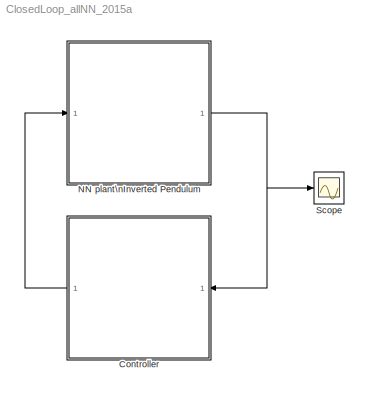
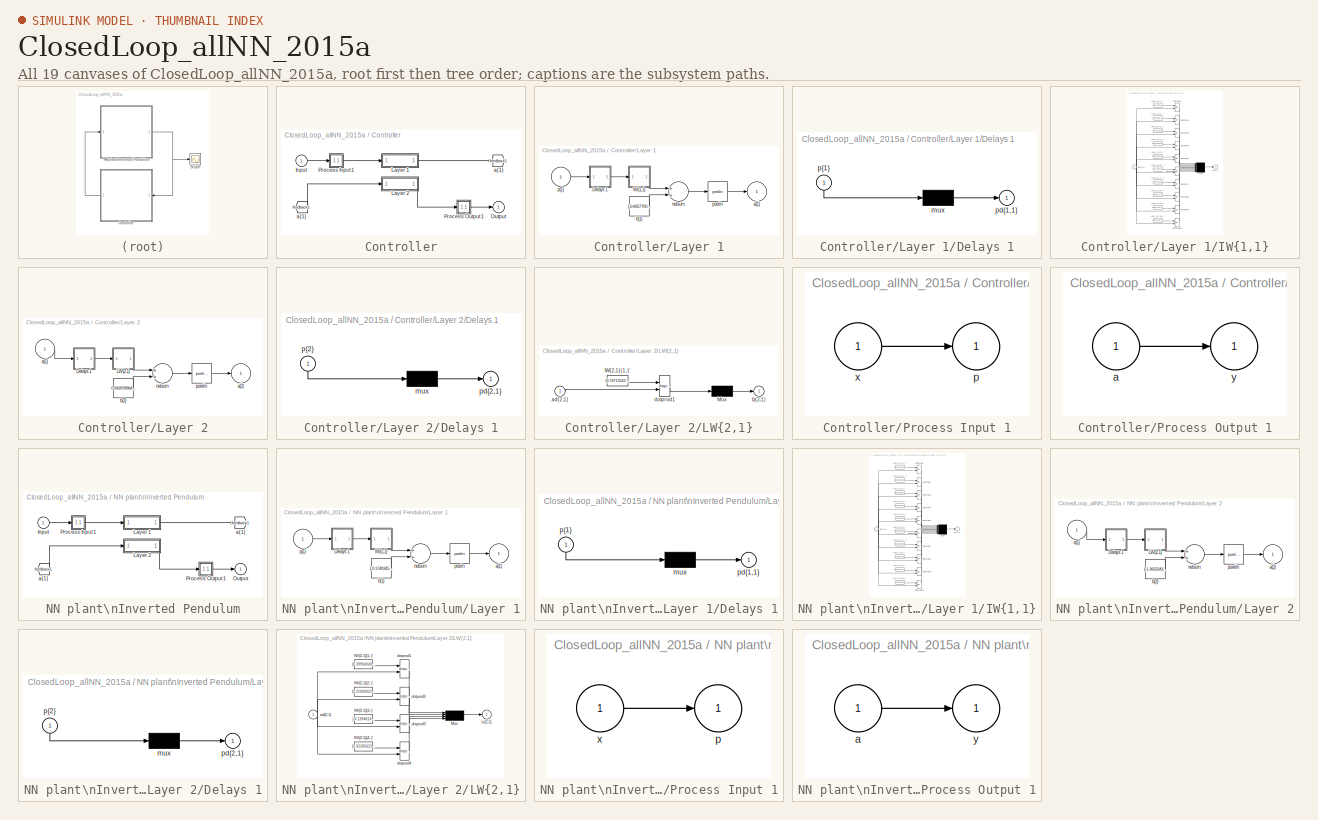
[diagram: thumbnail index - all 19 canvases of the model, root first then tree order]
MODEL ClosedLoop_allNN_2015a
KIND model
BLOCK [SubSystem] Controller
  Ports = [1, 1]
  RequestExecContextInheritance = off
  SID = 70
BLOCK [From] Controller/ a{1} 
  GotoTag = feedback1
  SID = 72
BLOCK [Inport] Controller/Input
  IconDisplay = Port number
  PortDimensions = 4
  SID = 71
BLOCK [SubSystem] Controller/Layer 1
  Ports = [1, 1]
  RequestExecContextInheritance = off
  SID = 73
BLOCK [SubSystem] Controller/Layer 1/Delays 1
  Ports = [1, 1]
  RequestExecContextInheritance = off
  SID = 75
BLOCK [Mux] Controller/Layer 1/Delays 1/mux
  Inputs = 1
  Ports = [1, 1]
  SID = 77
BLOCK [Outport] Controller/Layer 1/Delays 1/pd{1,1}
  IconDisplay = Port number
  SID = 78
BLOCK [Inport] Controller/Layer 1/Delays 1/p{1}
  IconDisplay = Port number
  PortDimensions = 4
  SID = 76
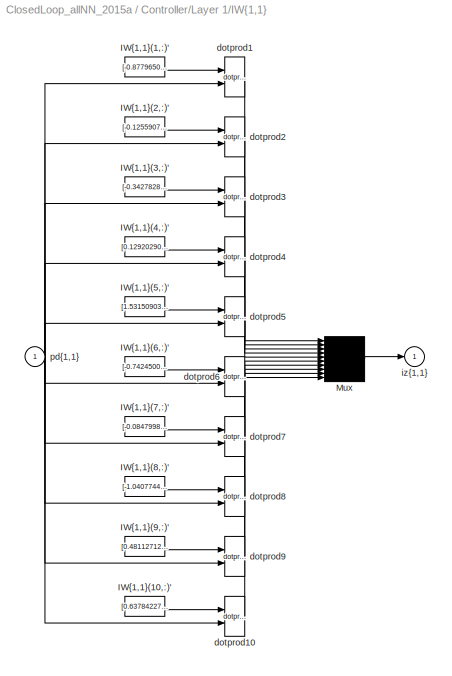
BLOCK [SubSystem] Controller/Layer 1/IW{1,1}
  Ports = [1, 1]
  RequestExecContextInheritance = off
  SID = 79
BLOCK [Constant] Controller/Layer 1/IW{1,1}/IW{1,1}(1,:)'
  SID = 81
  Value = [-0.87796503564738704;0.49901100618950317;0.71454036933225906;0.60627043227243305]
BLOCK [Constant] Controller/Layer 1/IW{1,1}/IW{1,1}(10,:)'
  SID = 82
  Value = [0.63784227733975685;-0.5302537729748027;-1.09627429383206;-0.5567973678491891]
BLOCK [Constant] Controller/Layer 1/IW{1,1}/IW{1,1}(2,:)'
  SID = 83
  Value = [-0.12559077276017769;-0.71710082085226234;0.25209344354354601;0.061115705218528202]
BLOCK [Constant] Controller/Layer 1/IW{1,1}/IW{1,1}(3,:)'
  SID = 84
  Value = [-0.3427828502492371;-0.067392433108730207;-0.69651510406602613;-1.0038188990663375]
BLOCK [Constant] Controller/Layer 1/IW{1,1}/IW{1,1}(4,:)'
  SID = 85
  Value = [0.12920290928565503;-0.69232795911020539;0.1455637388859069;0.41597125707816279]
BLOCK [Constant] Controller/Layer 1/IW{1,1}/IW{1,1}(5,:)'
  SID = 86
  Value = [1.5315090386213615;2.2947881767078333;3.3986928369152865;0.28470496984223509]
BLOCK [Constant] Controller/Layer 1/IW{1,1}/IW{1,1}(6,:)'
  SID = 87
  Value = [-0.74245009986607446;0.61288627274328555;0.80629100358006001;0.3139689927938778]
BLOCK [Constant] Controller/Layer 1/IW{1,1}/IW{1,1}(7,:)'
  SID = 88
  Value = [-0.084799845846560029;-1.3518486101793064;-6.2318932550801325;-1.8592906328174361]
BLOCK [Constant] Controller/Layer 1/IW{1,1}/IW{1,1}(8,:)'
  SID = 89
  Value = [-1.0407744506937988;0.36186145121637042;-0.11679802196322907;-0.39066879861826909]
BLOCK [Constant] Controller/Layer 1/IW{1,1}/IW{1,1}(9,:)'
  SID = 90
  Value = [0.48112712388942463;-0.46653834697750002;-1.8632540329353928;-0.7925217525254632]
BLOCK [Mux] Controller/Layer 1/IW{1,1}/Mux
  Inputs = 10
  Ports = [10, 1]
  SID = 91
BLOCK [Reference] Controller/Layer 1/IW{1,1}/dotprod1  REF=neural/Weight Functions/dotprod
  Ports = [2, 1]
  SID = 92
  SourceBlock = neural/Weight Functions/dotprod
  SourceType = DOTPROD
BLOCK [Reference] Controller/Layer 1/IW{1,1}/dotprod10  REF=neural/Weight Functions/dotprod
  Ports = [2, 1]
  SID = 93
  SourceBlock = neural/Weight Functions/dotprod
  SourceType = DOTPROD
BLOCK [Reference] Controller/Layer 1/IW{1,1}/dotprod2  REF=neural/Weight Functions/dotprod
  Ports = [2, 1]
  SID = 94
  SourceBlock = neural/Weight Functions/dotprod
  SourceType = DOTPROD
BLOCK [Reference] Controller/Layer 1/IW{1,1}/dotprod3  REF=neural/Weight Functions/dotprod
  Ports = [2, 1]
  SID = 95
  SourceBlock = neural/Weight Functions/dotprod
  SourceType = DOTPROD
BLOCK [Reference] Controller/Layer 1/IW{1,1}/dotprod4  REF=neural/Weight Functions/dotprod
  Ports = [2, 1]
  SID = 96
  SourceBlock = neural/Weight Functions/dotprod
  SourceType = DOTPROD
BLOCK [Reference] Controller/Layer 1/IW{1,1}/dotprod5  REF=neural/Weight Functions/dotprod
  Ports = [2, 1]
  SID = 97
  SourceBlock = neural/Weight Functions/dotprod
  SourceType = DOTPROD
BLOCK [Reference] Controller/Layer 1/IW{1,1}/dotprod6  REF=neural/Weight Functions/dotprod
  Ports = [2, 1]
  SID = 98
  SourceBlock = neural/Weight Functions/dotprod
  SourceType = DOTPROD
BLOCK [Reference] Controller/Layer 1/IW{1,1}/dotprod7  REF=neural/Weight Functions/dotprod
  Ports = [2, 1]
  SID = 99
  SourceBlock = neural/Weight Functions/dotprod
  SourceType = DOTPROD
BLOCK [Reference] Controller/Layer 1/IW{1,1}/dotprod8  REF=neural/Weight Functions/dotprod
  Ports = [2, 1]
  SID = 100
  SourceBlock = neural/Weight Functions/dotprod
  SourceType = DOTPROD
BLOCK [Reference] Controller/Layer 1/IW{1,1}/dotprod9  REF=neural/Weight Functions/dotprod
  Ports = [2, 1]
  SID = 101
  SourceBlock = neural/Weight Functions/dotprod
  SourceType = DOTPROD
BLOCK [Outport] Controller/Layer 1/IW{1,1}/iz{1,1}
  IconDisplay = Port number
  SID = 102
BLOCK [Inport] Controller/Layer 1/IW{1,1}/pd{1,1}
  IconDisplay = Port number
  PortDimensions = 4
  SID = 80
BLOCK [Outport] Controller/Layer 1/a{1}
  IconDisplay = Port number
  InitialOutput = [0;0;0;0;0;0;0;0;0;0]
  SID = 106
BLOCK [Constant] Controller/Layer 1/b{1}
  SID = 103
  Value = [-0.695770082956642;-0.59025015285604054;0.85458828482344817;-0.96125374460677404;2.0941624915168702;-0.94182590475219408;1.226247007252744;-0.25044766192840334;0.53655590188584601;0.40367892423748941]
BLOCK [Sum] Controller/Layer 1/netsum
  Inputs = 2
  Ports = [2, 1]
  SID = 104
BLOCK [Reference] Controller/Layer 1/poslin  REF=neural/Transfer Functions/poslin
  Ports = [1, 1]
  SID = 105
  SourceBlock = neural/Transfer Functions/poslin
  SourceType = POSLIN
BLOCK [Inport] Controller/Layer 1/p{1}
  IconDisplay = Port number
  PortDimensions = 4
  SID = 74
BLOCK [SubSystem] Controller/Layer 2
  Ports = [1, 1]
  RequestExecContextInheritance = off
  SID = 107
BLOCK [SubSystem] Controller/Layer 2/Delays 1
  Ports = [1, 1]
  RequestExecContextInheritance = off
  SID = 109
BLOCK [Mux] Controller/Layer 2/Delays 1/mux
  Inputs = 1
  Ports = [1, 1]
  SID = 111
BLOCK [Outport] Controller/Layer 2/Delays 1/pd{2,1}
  IconDisplay = Port number
  SID = 112
BLOCK [Inport] Controller/Layer 2/Delays 1/p{2}
  IconDisplay = Port number
  PortDimensions = 10
  SID = 110
BLOCK [SubSystem] Controller/Layer 2/LW{2,1}
  Ports = [1, 1]
  RequestExecContextInheritance = off
  SID = 113
BLOCK [Constant] Controller/Layer 2/LW{2,1}/IW{2,1}(1,:)'
  SID = 115
  Value = [0.78713542988746454;-0.61752720013607953;-0.77119697366164419;0.87614583201904728;4.2998487518399369;-0.77851724451969462;-6.5049497296170564;3.3055572937914961e-12;-1.8358128336560628;-0.81206546376477995]
BLOCK [Mux] Controller/Layer 2/LW{2,1}/Mux
  Inputs = 1
  Ports = [1, 1]
  SID = 116
BLOCK [Inport] Controller/Layer 2/LW{2,1}/ad{2,1}
  IconDisplay = Port number
  PortDimensions = 10
  SID = 114
BLOCK [Reference] Controller/Layer 2/LW{2,1}/dotprod1  REF=neural/Weight Functions/dotprod
  Ports = [2, 1]
  SID = 117
  SourceBlock = neural/Weight Functions/dotprod
  SourceType = DOTPROD
BLOCK [Outport] Controller/Layer 2/LW{2,1}/lz{2,1}
  IconDisplay = Port number
  SID = 118
BLOCK [Inport] Controller/Layer 2/a{1} 
  IconDisplay = Port number
  PortDimensions = 10
  SID = 108
BLOCK [Outport] Controller/Layer 2/a{2}
  IconDisplay = Port number
  InitialOutput = 0
  SID = 122
BLOCK [Constant] Controller/Layer 2/b{2}
  SID = 119
  Value = 0.94397898477322795
BLOCK [Sum] Controller/Layer 2/netsum
  Inputs = 2
  Ports = [2, 1]
  SID = 120
BLOCK [Reference] Controller/Layer 2/purelin  REF=neural/Transfer Functions/purelin
  Ports = [1, 1]
  SID = 121
  SourceBlock = neural/Transfer Functions/purelin
  SourceType = PURELIN
BLOCK [Outport] Controller/Output
  IconDisplay = Port number
  InitialOutput = 0
  SID = 130
BLOCK [SubSystem] Controller/Process Input 1
  Ports = [1, 1]
  RequestExecContextInheritance = off
  SID = 123
BLOCK [Outport] Controller/Process Input 1/p
  IconDisplay = Port number
  PortDimensions = 4
  SID = 125
BLOCK [Inport] Controller/Process Input 1/x
  IconDisplay = Port number
  PortDimensions = 4
  SID = 124
BLOCK [SubSystem] Controller/Process Output 1
  Ports = [1, 1]
  RequestExecContextInheritance = off
  SID = 126
BLOCK [Inport] Controller/Process Output 1/a
  IconDisplay = Port number
  PortDimensions = 1
  SID = 127
BLOCK [Outport] Controller/Process Output 1/y
  IconDisplay = Port number
  PortDimensions = 1
  SID = 128
BLOCK [Goto] Controller/a{1}
  GotoTag = feedback1
  SID = 129
BLOCK [SubSystem] NN plant\nInverted Pendulum
  Ports = [1, 1]
  RequestExecContextInheritance = off
  SID = 3
BLOCK [From] NN plant\nInverted Pendulum/ a{1} 
  GotoTag = feedback1
  SID = 12
BLOCK [Inport] NN plant\nInverted Pendulum/Input
  IconDisplay = Port number
  PortDimensions = 1
  SID = 4
BLOCK [SubSystem] NN plant\nInverted Pendulum/Layer 1
  Ports = [1, 1]
  RequestExecContextInheritance = off
  SID = 14
BLOCK [SubSystem] NN plant\nInverted Pendulum/Layer 1/Delays 1
  Ports = [1, 1]
  RequestExecContextInheritance = off
  SID = 19
BLOCK [Mux] NN plant\nInverted Pendulum/Layer 1/Delays 1/mux
  Inputs = 1
  Ports = [1, 1]
  SID = 21
BLOCK [Outport] NN plant\nInverted Pendulum/Layer 1/Delays 1/pd{1,1}
  IconDisplay = Port number
  SID = 22
BLOCK [Inport] NN plant\nInverted Pendulum/Layer 1/Delays 1/p{1}
  IconDisplay = Port number
  PortDimensions = 1
  SID = 20
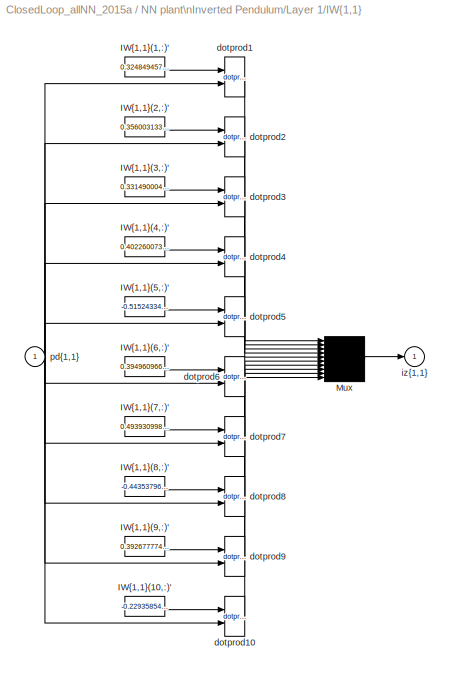
BLOCK [SubSystem] NN plant\nInverted Pendulum/Layer 1/IW{1,1}
  Ports = [1, 1]
  RequestExecContextInheritance = off
  SID = 23
BLOCK [Constant] NN plant\nInverted Pendulum/Layer 1/IW{1,1}/IW{1,1}(1,:)'
  SID = 26
  Value = 0.3248494574321914
BLOCK [Constant] NN plant\nInverted Pendulum/Layer 1/IW{1,1}/IW{1,1}(10,:)'
  SID = 44
  Value = -0.22935854042636031
BLOCK [Constant] NN plant\nInverted Pendulum/Layer 1/IW{1,1}/IW{1,1}(2,:)'
  SID = 28
  Value = 0.3560031333708501
BLOCK [Constant] NN plant\nInverted Pendulum/Layer 1/IW{1,1}/IW{1,1}(3,:)'
  SID = 30
  Value = 0.33149000408451673
BLOCK [Constant] NN plant\nInverted Pendulum/Layer 1/IW{1,1}/IW{1,1}(4,:)'
  SID = 32
  Value = 0.40226007330371516
BLOCK [Constant] NN plant\nInverted Pendulum/Layer 1/IW{1,1}/IW{1,1}(5,:)'
  SID = 34
  Value = -0.51524334846504782
BLOCK [Constant] NN plant\nInverted Pendulum/Layer 1/IW{1,1}/IW{1,1}(6,:)'
  SID = 36
  Value = 0.39496096665943192
BLOCK [Constant] NN plant\nInverted Pendulum/Layer 1/IW{1,1}/IW{1,1}(7,:)'
  SID = 38
  Value = 0.49393099844251459
BLOCK [Constant] NN plant\nInverted Pendulum/Layer 1/IW{1,1}/IW{1,1}(8,:)'
  SID = 40
  Value = -0.44353796095876635
BLOCK [Constant] NN plant\nInverted Pendulum/Layer 1/IW{1,1}/IW{1,1}(9,:)'
  SID = 42
  Value = 0.39267777453827035
BLOCK [Mux] NN plant\nInverted Pendulum/Layer 1/IW{1,1}/Mux
  Inputs = 10
  Ports = [10, 1]
  SID = 45
BLOCK [Reference] NN plant\nInverted Pendulum/Layer 1/IW{1,1}/dotprod1  REF=neural/Weight Functions/dotprod
  Ports = [2, 1]
  SID = 25
  SourceBlock = neural/Weight Functions/dotprod
  SourceType = DOTPROD
BLOCK [Reference] NN plant\nInverted Pendulum/Layer 1/IW{1,1}/dotprod10  REF=neural/Weight Functions/dotprod
  Ports = [2, 1]
  SID = 43
  SourceBlock = neural/Weight Functions/dotprod
  SourceType = DOTPROD
BLOCK [Reference] NN plant\nInverted Pendulum/Layer 1/IW{1,1}/dotprod2  REF=neural/Weight Functions/dotprod
  Ports = [2, 1]
  SID = 27
  SourceBlock = neural/Weight Functions/dotprod
  SourceType = DOTPROD
BLOCK [Reference] NN plant\nInverted Pendulum/Layer 1/IW{1,1}/dotprod3  REF=neural/Weight Functions/dotprod
  Ports = [2, 1]
  SID = 29
  SourceBlock = neural/Weight Functions/dotprod
  SourceType = DOTPROD
BLOCK [Reference] NN plant\nInverted Pendulum/Layer 1/IW{1,1}/dotprod4  REF=neural/Weight Functions/dotprod
  Ports = [2, 1]
  SID = 31
  SourceBlock = neural/Weight Functions/dotprod
  SourceType = DOTPROD
BLOCK [Reference] NN plant\nInverted Pendulum/Layer 1/IW{1,1}/dotprod5  REF=neural/Weight Functions/dotprod
  Ports = [2, 1]
  SID = 33
  SourceBlock = neural/Weight Functions/dotprod
  SourceType = DOTPROD
BLOCK [Reference] NN plant\nInverted Pendulum/Layer 1/IW{1,1}/dotprod6  REF=neural/Weight Functions/dotprod
  Ports = [2, 1]
  SID = 35
  SourceBlock = neural/Weight Functions/dotprod
  SourceType = DOTPROD
BLOCK [Reference] NN plant\nInverted Pendulum/Layer 1/IW{1,1}/dotprod7  REF=neural/Weight Functions/dotprod
  Ports = [2, 1]
  SID = 37
  SourceBlock = neural/Weight Functions/dotprod
  SourceType = DOTPROD
BLOCK [Reference] NN plant\nInverted Pendulum/Layer 1/IW{1,1}/dotprod8  REF=neural/Weight Functions/dotprod
  Ports = [2, 1]
  SID = 39
  SourceBlock = neural/Weight Functions/dotprod
  SourceType = DOTPROD
BLOCK [Reference] NN plant\nInverted Pendulum/Layer 1/IW{1,1}/dotprod9  REF=neural/Weight Functions/dotprod
  Ports = [2, 1]
  SID = 41
  SourceBlock = neural/Weight Functions/dotprod
  SourceType = DOTPROD
BLOCK [Outport] NN plant\nInverted Pendulum/Layer 1/IW{1,1}/iz{1,1}
  IconDisplay = Port number
  SID = 46
BLOCK [Inport] NN plant\nInverted Pendulum/Layer 1/IW{1,1}/pd{1,1}
  IconDisplay = Port number
  PortDimensions = 1
  SID = 24
BLOCK [Outport] NN plant\nInverted Pendulum/Layer 1/a{1}
  IconDisplay = Port number
  InitialOutput = [0;0;0;0;0;0;0;0;0;0]
  SID = 15
BLOCK [Constant] NN plant\nInverted Pendulum/Layer 1/b{1}
  SID = 47
  Value = [-0.17403452748603712;-0.24976714377416828;-1.1502098030905625;-0.96585514775885895;-0.73680426090323714;1.2937884703572933;0.23168854417313178;0.66487654234352733;-0.78207454566464973;0.12049468913469046]
BLOCK [Sum] NN plant\nInverted Pendulum/Layer 1/netsum
  Inputs = 2
  Ports = [2, 1]
  SID = 17
BLOCK [Reference] NN plant\nInverted Pendulum/Layer 1/poslin  REF=neural/Transfer Functions/poslin
  Ports = [1, 1]
  SID = 16
  SourceBlock = neural/Transfer Functions/poslin
  SourceType = POSLIN
BLOCK [Inport] NN plant\nInverted Pendulum/Layer 1/p{1}
  IconDisplay = Port number
  PortDimensions = 1
  SID = 18
BLOCK [SubSystem] NN plant\nInverted Pendulum/Layer 2
  Ports = [1, 1]
  RequestExecContextInheritance = off
  SID = 48
BLOCK [SubSystem] NN plant\nInverted Pendulum/Layer 2/Delays 1
  Ports = [1, 1]
  RequestExecContextInheritance = off
  SID = 53
BLOCK [Mux] NN plant\nInverted Pendulum/Layer 2/Delays 1/mux
  Inputs = 1
  Ports = [1, 1]
  SID = 55
BLOCK [Outport] NN plant\nInverted Pendulum/Layer 2/Delays 1/pd{2,1}
  IconDisplay = Port number
  SID = 56
BLOCK [Inport] NN plant\nInverted Pendulum/Layer 2/Delays 1/p{2}
  IconDisplay = Port number
  PortDimensions = 10
  SID = 54
BLOCK [SubSystem] NN plant\nInverted Pendulum/Layer 2/LW{2,1}
  Ports = [1, 1]
  RequestExecContextInheritance = off
  SID = 57
BLOCK [Constant] NN plant\nInverted Pendulum/Layer 2/LW{2,1}/IW{2,1}(1,:)'
  SID = 60
  Value = [0.39904040299346044;0.23643838296608974;-0.096712015434383944;-1.2197132160776809;-0.80843487271554559;0.68925795329989492;-0.48615637565627817;0.86632064036949452;0.75137600126074189;0.090001907268977027]
BLOCK [Constant] NN plant\nInverted Pendulum/Layer 2/LW{2,1}/IW{2,1}(2,:)'
  SID = 62
  Value = [0.21069421774402849;-0.15631166236736005;-0.26349559245508225;-0.40507459701322068;0.10198492929171261;0.46449176308326606;0.024563362770451614;0.11462597413350746;-0.0547119319155236;-0.18276454435146078]
BLOCK [Constant] NN plant\nInverted Pendulum/Layer 2/LW{2,1}/IW{2,1}(3,:)'
  SID = 64
  Value = [-0.13946148405794506;0.12172053719469399;-0.19621803190955478;0.11480050544073833;-0.046020013233883265;0.062801573860063062;-0.041748916206167282;-0.050112368026923614;0.067133278614236042;0.14639750193404219]
BLOCK [Constant] NN plant\nInverted Pendulum/Layer 2/LW{2,1}/IW{2,1}(4,:)'
  SID = 66
  Value = [0.32185615150315311;-0.36404203763266613;1.1007062343935186;0.53629544899817616;0.34851145014726714;-1.0750547449563694;0.30838363688487158;-0.27643569356886943;-0.47066157030902106;-0.63494829724872648]
BLOCK [Mux] NN plant\nInverted Pendulum/Layer 2/LW{2,1}/Mux
  Ports = [4, 1]
  SID = 67
BLOCK [Inport] NN plant\nInverted Pendulum/Layer 2/LW{2,1}/ad{2,1}
  IconDisplay = Port number
  PortDimensions = 10
  SID = 58
BLOCK [Reference] NN plant\nInverted Pendulum/Layer 2/LW{2,1}/dotprod1  REF=neural/Weight Functions/dotprod
  Ports = [2, 1]
  SID = 59
  SourceBlock = neural/Weight Functions/dotprod
  SourceType = DOTPROD
BLOCK [Reference] NN plant\nInverted Pendulum/Layer 2/LW{2,1}/dotprod2  REF=neural/Weight Functions/dotprod
  Ports = [2, 1]
  SID = 61
  SourceBlock = neural/Weight Functions/dotprod
  SourceType = DOTPROD
BLOCK [Reference] NN plant\nInverted Pendulum/Layer 2/LW{2,1}/dotprod3  REF=neural/Weight Functions/dotprod
  Ports = [2, 1]
  SID = 63
  SourceBlock = neural/Weight Functions/dotprod
  SourceType = DOTPROD
BLOCK [Reference] NN plant\nInverted Pendulum/Layer 2/LW{2,1}/dotprod4  REF=neural/Weight Functions/dotprod
  Ports = [2, 1]
  SID = 65
  SourceBlock = neural/Weight Functions/dotprod
  SourceType = DOTPROD
BLOCK [Outport] NN plant\nInverted Pendulum/Layer 2/LW{2,1}/lz{2,1}
  IconDisplay = Port number
  SID = 68
BLOCK [Inport] NN plant\nInverted Pendulum/Layer 2/a{1} 
  IconDisplay = Port number
  PortDimensions = 10
  SID = 52
BLOCK [Outport] NN plant\nInverted Pendulum/Layer 2/a{2}
  IconDisplay = Port number
  InitialOutput = [0;0;0;0]
  SID = 49
BLOCK [Constant] NN plant\nInverted Pendulum/Layer 2/b{2}
  SID = 69
  Value = [-1.3663243444072446;-0.66079274554939815;-0.055929261185291491;1.5799438381594093]
BLOCK [Sum] NN plant\nInverted Pendulum/Layer 2/netsum
  Inputs = 2
  Ports = [2, 1]
  SID = 51
BLOCK [Reference] NN plant\nInverted Pendulum/Layer 2/purelin  REF=neural/Transfer Functions/purelin
  Ports = [1, 1]
  SID = 50
  SourceBlock = neural/Transfer Functions/purelin
  SourceType = PURELIN
BLOCK [Outport] NN plant\nInverted Pendulum/Output
  IconDisplay = Port number
  InitialOutput = [0;0;0;0]
  SID = 8
BLOCK [SubSystem] NN plant\nInverted Pendulum/Process Input 1
  Ports = [1, 1]
  RequestExecContextInheritance = off
  SID = 5
BLOCK [Outport] NN plant\nInverted Pendulum/Process Input 1/p
  IconDisplay = Port number
  PortDimensions = 1
  SID = 7
BLOCK [Inport] NN plant\nInverted Pendulum/Process Input 1/x
  IconDisplay = Port number
  PortDimensions = 1
  SID = 6
BLOCK [SubSystem] NN plant\nInverted Pendulum/Process Output 1
  Ports = [1, 1]
  RequestExecContextInheritance = off
  SID = 9
BLOCK [Inport] NN plant\nInverted Pendulum/Process Output 1/a
  IconDisplay = Port number
  PortDimensions = 4
  SID = 10
BLOCK [Outport] NN plant\nInverted Pendulum/Process Output 1/y
  IconDisplay = Port number
  PortDimensions = 4
  SID = 11
BLOCK [Goto] NN plant\nInverted Pendulum/a{1}
  GotoTag = feedback1
  SID = 13
BLOCK [Scope] Scope
  DataFormat = StructureWithTime
  Decimation = 1
  Floating = off
  Grid = on
  LimitDataPoints = off
  MaxDataPoints = 5000
  NumInputPorts = 1
  Ports = [1]
  SID = 131
  SampleInput = off
  SampleTime = -1
  SaveName = ScopeData
  SaveToWorkspace = off
  ShowLegends = on
  TickLabels = OneTimeTick
  TimeRange = auto
  YMax = 0.01768
  YMin = -0.01039
  ZoomMode = on
LINE Controller/ a{1} :1 -> Controller/Layer 2:1
LINE Controller/Input:1 -> Controller/Process Input 1:1
LINE Controller/Layer 1/Delays 1/mux:1 -> Controller/Layer 1/Delays 1/pd{1,1}:1
LINE Controller/Layer 1/Delays 1/p{1}:1 -> Controller/Layer 1/Delays 1/mux:1
LINE Controller/Layer 1/Delays 1:1 -> Controller/Layer 1/IW{1,1}:1
LINE Controller/Layer 1/IW{1,1}/IW{1,1}(1,:)':1 -> Controller/Layer 1/IW{1,1}/dotprod1:1
LINE Controller/Layer 1/IW{1,1}/IW{1,1}(10,:)':1 -> Controller/Layer 1/IW{1,1}/dotprod10:1
LINE Controller/Layer 1/IW{1,1}/IW{1,1}(2,:)':1 -> Controller/Layer 1/IW{1,1}/dotprod2:1
LINE Controller/Layer 1/IW{1,1}/IW{1,1}(3,:)':1 -> Controller/Layer 1/IW{1,1}/dotprod3:1
LINE Controller/Layer 1/IW{1,1}/IW{1,1}(4,:)':1 -> Controller/Layer 1/IW{1,1}/dotprod4:1
LINE Controller/Layer 1/IW{1,1}/IW{1,1}(5,:)':1 -> Controller/Layer 1/IW{1,1}/dotprod5:1
LINE Controller/Layer 1/IW{1,1}/IW{1,1}(6,:)':1 -> Controller/Layer 1/IW{1,1}/dotprod6:1
LINE Controller/Layer 1/IW{1,1}/IW{1,1}(7,:)':1 -> Controller/Layer 1/IW{1,1}/dotprod7:1
LINE Controller/Layer 1/IW{1,1}/IW{1,1}(8,:)':1 -> Controller/Layer 1/IW{1,1}/dotprod8:1
LINE Controller/Layer 1/IW{1,1}/IW{1,1}(9,:)':1 -> Controller/Layer 1/IW{1,1}/dotprod9:1
LINE Controller/Layer 1/IW{1,1}/Mux:1 -> Controller/Layer 1/IW{1,1}/iz{1,1}:1
LINE Controller/Layer 1/IW{1,1}/dotprod10:1 -> Controller/Layer 1/IW{1,1}/Mux:10
LINE Controller/Layer 1/IW{1,1}/dotprod1:1 -> Controller/Layer 1/IW{1,1}/Mux:1
LINE Controller/Layer 1/IW{1,1}/dotprod2:1 -> Controller/Layer 1/IW{1,1}/Mux:2
LINE Controller/Layer 1/IW{1,1}/dotprod3:1 -> Controller/Layer 1/IW{1,1}/Mux:3
LINE Controller/Layer 1/IW{1,1}/dotprod4:1 -> Controller/Layer 1/IW{1,1}/Mux:4
LINE Controller/Layer 1/IW{1,1}/dotprod5:1 -> Controller/Layer 1/IW{1,1}/Mux:5
LINE Controller/Layer 1/IW{1,1}/dotprod6:1 -> Controller/Layer 1/IW{1,1}/Mux:6
LINE Controller/Layer 1/IW{1,1}/dotprod7:1 -> Controller/Layer 1/IW{1,1}/Mux:7
LINE Controller/Layer 1/IW{1,1}/dotprod8:1 -> Controller/Layer 1/IW{1,1}/Mux:8
LINE Controller/Layer 1/IW{1,1}/dotprod9:1 -> Controller/Layer 1/IW{1,1}/Mux:9
NET Controller/Layer 1/IW{1,1}/pd{1,1}:1 -> Controller/Layer 1/IW{1,1}/dotprod10:2, Controller/Layer 1/IW{1,1}/dotprod1:2, Controller/Layer 1/IW{1,1}/dotprod2:2, Controller/Layer 1/IW{1,1}/dotprod3:2, Controller/Layer 1/IW{1,1}/dotprod4:2, Controller/Layer 1/IW{1,1}/dotprod5:2, Controller/Layer 1/IW{1,1}/dotprod6:2, Controller/Layer 1/IW{1,1}/dotprod7:2, Controller/Layer 1/IW{1,1}/dotprod8:2, Controller/Layer 1/IW{1,1}/dotprod9:2
LINE Controller/Layer 1/IW{1,1}:1 -> Controller/Layer 1/netsum:1
LINE Controller/Layer 1/b{1}:1 -> Controller/Layer 1/netsum:2
LINE Controller/Layer 1/netsum:1 -> Controller/Layer 1/poslin:1
LINE Controller/Layer 1/poslin:1 -> Controller/Layer 1/a{1}:1
LINE Controller/Layer 1/p{1}:1 -> Controller/Layer 1/Delays 1:1
LINE Controller/Layer 1:1 -> Controller/a{1}:1
LINE Controller/Layer 2/Delays 1/mux:1 -> Controller/Layer 2/Delays 1/pd{2,1}:1
LINE Controller/Layer 2/Delays 1/p{2}:1 -> Controller/Layer 2/Delays 1/mux:1
LINE Controller/Layer 2/Delays 1:1 -> Controller/Layer 2/LW{2,1}:1
LINE Controller/Layer 2/LW{2,1}/IW{2,1}(1,:)':1 -> Controller/Layer 2/LW{2,1}/dotprod1:1
LINE Controller/Layer 2/LW{2,1}/Mux:1 -> Controller/Layer 2/LW{2,1}/lz{2,1}:1
LINE Controller/Layer 2/LW{2,1}/ad{2,1}:1 -> Controller/Layer 2/LW{2,1}/dotprod1:2
LINE Controller/Layer 2/LW{2,1}/dotprod1:1 -> Controller/Layer 2/LW{2,1}/Mux:1
LINE Controller/Layer 2/LW{2,1}:1 -> Controller/Layer 2/netsum:1
LINE Controller/Layer 2/a{1} :1 -> Controller/Layer 2/Delays 1:1
LINE Controller/Layer 2/b{2}:1 -> Controller/Layer 2/netsum:2
LINE Controller/Layer 2/netsum:1 -> Controller/Layer 2/purelin:1
LINE Controller/Layer 2/purelin:1 -> Controller/Layer 2/a{2}:1
LINE Controller/Layer 2:1 -> Controller/Process Output 1:1
LINE Controller/Process Input 1/x:1 -> Controller/Process Input 1/p:1
LINE Controller/Process Input 1:1 -> Controller/Layer 1:1
LINE Controller/Process Output 1/a:1 -> Controller/Process Output 1/y:1
LINE Controller/Process Output 1:1 -> Controller/Output:1
LINE Controller:1 -> NN plant\nInverted Pendulum:1
LINE NN plant\nInverted Pendulum/ a{1} :1 -> NN plant\nInverted Pendulum/Layer 2:1
LINE NN plant\nInverted Pendulum/Input:1 -> NN plant\nInverted Pendulum/Process Input 1:1
LINE NN plant\nInverted Pendulum/Layer 1/Delays 1/mux:1 -> NN plant\nInverted Pendulum/Layer 1/Delays 1/pd{1,1}:1
LINE NN plant\nInverted Pendulum/Layer 1/Delays 1/p{1}:1 -> NN plant\nInverted Pendulum/Layer 1/Delays 1/mux:1
LINE NN plant\nInverted Pendulum/Layer 1/Delays 1:1 -> NN plant\nInverted Pendulum/Layer 1/IW{1,1}:1
LINE NN plant\nInverted Pendulum/Layer 1/IW{1,1}/IW{1,1}(1,:)':1 -> NN plant\nInverted Pendulum/Layer 1/IW{1,1}/dotprod1:1
LINE NN plant\nInverted Pendulum/Layer 1/IW{1,1}/IW{1,1}(10,:)':1 -> NN plant\nInverted Pendulum/Layer 1/IW{1,1}/dotprod10:1
LINE NN plant\nInverted Pendulum/Layer 1/IW{1,1}/IW{1,1}(2,:)':1 -> NN plant\nInverted Pendulum/Layer 1/IW{1,1}/dotprod2:1
LINE NN plant\nInverted Pendulum/Layer 1/IW{1,1}/IW{1,1}(3,:)':1 -> NN plant\nInverted Pendulum/Layer 1/IW{1,1}/dotprod3:1
LINE NN plant\nInverted Pendulum/Layer 1/IW{1,1}/IW{1,1}(4,:)':1 -> NN plant\nInverted Pendulum/Layer 1/IW{1,1}/dotprod4:1
LINE NN plant\nInverted Pendulum/Layer 1/IW{1,1}/IW{1,1}(5,:)':1 -> NN plant\nInverted Pendulum/Layer 1/IW{1,1}/dotprod5:1
LINE NN plant\nInverted Pendulum/Layer 1/IW{1,1}/IW{1,1}(6,:)':1 -> NN plant\nInverted Pendulum/Layer 1/IW{1,1}/dotprod6:1
LINE NN plant\nInverted Pendulum/Layer 1/IW{1,1}/IW{1,1}(7,:)':1 -> NN plant\nInverted Pendulum/Layer 1/IW{1,1}/dotprod7:1
LINE NN plant\nInverted Pendulum/Layer 1/IW{1,1}/IW{1,1}(8,:)':1 -> NN plant\nInverted Pendulum/Layer 1/IW{1,1}/dotprod8:1
LINE NN plant\nInverted Pendulum/Layer 1/IW{1,1}/IW{1,1}(9,:)':1 -> NN plant\nInverted Pendulum/Layer 1/IW{1,1}/dotprod9:1
LINE NN plant\nInverted Pendulum/Layer 1/IW{1,1}/Mux:1 -> NN plant\nInverted Pendulum/Layer 1/IW{1,1}/iz{1,1}:1
LINE NN plant\nInverted Pendulum/Layer 1/IW{1,1}/dotprod10:1 -> NN plant\nInverted Pendulum/Layer 1/IW{1,1}/Mux:10
LINE NN plant\nInverted Pendulum/Layer 1/IW{1,1}/dotprod1:1 -> NN plant\nInverted Pendulum/Layer 1/IW{1,1}/Mux:1
LINE NN plant\nInverted Pendulum/Layer 1/IW{1,1}/dotprod2:1 -> NN plant\nInverted Pendulum/Layer 1/IW{1,1}/Mux:2
LINE NN plant\nInverted Pendulum/Layer 1/IW{1,1}/dotprod3:1 -> NN plant\nInverted Pendulum/Layer 1/IW{1,1}/Mux:3
LINE NN plant\nInverted Pendulum/Layer 1/IW{1,1}/dotprod4:1 -> NN plant\nInverted Pendulum/Layer 1/IW{1,1}/Mux:4
LINE NN plant\nInverted Pendulum/Layer 1/IW{1,1}/dotprod5:1 -> NN plant\nInverted Pendulum/Layer 1/IW{1,1}/Mux:5
LINE NN plant\nInverted Pendulum/Layer 1/IW{1,1}/dotprod6:1 -> NN plant\nInverted Pendulum/Layer 1/IW{1,1}/Mux:6
LINE NN plant\nInverted Pendulum/Layer 1/IW{1,1}/dotprod7:1 -> NN plant\nInverted Pendulum/Layer 1/IW{1,1}/Mux:7
LINE NN plant\nInverted Pendulum/Layer 1/IW{1,1}/dotprod8:1 -> NN plant\nInverted Pendulum/Layer 1/IW{1,1}/Mux:8
LINE NN plant\nInverted Pendulum/Layer 1/IW{1,1}/dotprod9:1 -> NN plant\nInverted Pendulum/Layer 1/IW{1,1}/Mux:9
NET NN plant\nInverted Pendulum/Layer 1/IW{1,1}/pd{1,1}:1 -> NN plant\nInverted Pendulum/Layer 1/IW{1,1}/dotprod10:2, NN plant\nInverted Pendulum/Layer 1/IW{1,1}/dotprod1:2, NN plant\nInverted Pendulum/Layer 1/IW{1,1}/dotprod2:2, NN plant\nInverted Pendulum/Layer 1/IW{1,1}/dotprod3:2, NN plant\nInverted Pendulum/Layer 1/IW{1,1}/dotprod4:2, NN plant\nInverted Pendulum/Layer 1/IW{1,1}/dotprod5:2, NN plant\nInverted Pendulum/Layer 1/IW{1,1}/dotprod6:2, NN plant\nInverted Pendulum/Layer 1/IW{1,1}/dotprod7:2, NN plant\nInverted Pendulum/Layer 1/IW{1,1}/dotprod8:2, NN plant\nInverted Pendulum/Layer 1/IW{1,1}/dotprod9:2
LINE NN plant\nInverted Pendulum/Layer 1/IW{1,1}:1 -> NN plant\nInverted Pendulum/Layer 1/netsum:1
LINE NN plant\nInverted Pendulum/Layer 1/b{1}:1 -> NN plant\nInverted Pendulum/Layer 1/netsum:2
LINE NN plant\nInverted Pendulum/Layer 1/netsum:1 -> NN plant\nInverted Pendulum/Layer 1/poslin:1
LINE NN plant\nInverted Pendulum/Layer 1/poslin:1 -> NN plant\nInverted Pendulum/Layer 1/a{1}:1
LINE NN plant\nInverted Pendulum/Layer 1/p{1}:1 -> NN plant\nInverted Pendulum/Layer 1/Delays 1:1
LINE NN plant\nInverted Pendulum/Layer 1:1 -> NN plant\nInverted Pendulum/a{1}:1
LINE NN plant\nInverted Pendulum/Layer 2/Delays 1/mux:1 -> NN plant\nInverted Pendulum/Layer 2/Delays 1/pd{2,1}:1
LINE NN plant\nInverted Pendulum/Layer 2/Delays 1/p{2}:1 -> NN plant\nInverted Pendulum/Layer 2/Delays 1/mux:1
LINE NN plant\nInverted Pendulum/Layer 2/Delays 1:1 -> NN plant\nInverted Pendulum/Layer 2/LW{2,1}:1
LINE NN plant\nInverted Pendulum/Layer 2/LW{2,1}/IW{2,1}(1,:)':1 -> NN plant\nInverted Pendulum/Layer 2/LW{2,1}/dotprod1:1
LINE NN plant\nInverted Pendulum/Layer 2/LW{2,1}/IW{2,1}(2,:)':1 -> NN plant\nInverted Pendulum/Layer 2/LW{2,1}/dotprod2:1
LINE NN plant\nInverted Pendulum/Layer 2/LW{2,1}/IW{2,1}(3,:)':1 -> NN plant\nInverted Pendulum/Layer 2/LW{2,1}/dotprod3:1
LINE NN plant\nInverted Pendulum/Layer 2/LW{2,1}/IW{2,1}(4,:)':1 -> NN plant\nInverted Pendulum/Layer 2/LW{2,1}/dotprod4:1
LINE NN plant\nInverted Pendulum/Layer 2/LW{2,1}/Mux:1 -> NN plant\nInverted Pendulum/Layer 2/LW{2,1}/lz{2,1}:1
NET NN plant\nInverted Pendulum/Layer 2/LW{2,1}/ad{2,1}:1 -> NN plant\nInverted Pendulum/Layer 2/LW{2,1}/dotprod1:2, NN plant\nInverted Pendulum/Layer 2/LW{2,1}/dotprod2:2, NN plant\nInverted Pendulum/Layer 2/LW{2,1}/dotprod3:2, NN plant\nInverted Pendulum/Layer 2/LW{2,1}/dotprod4:2
LINE NN plant\nInverted Pendulum/Layer 2/LW{2,1}/dotprod1:1 -> NN plant\nInverted Pendulum/Layer 2/LW{2,1}/Mux:1
LINE NN plant\nInverted Pendulum/Layer 2/LW{2,1}/dotprod2:1 -> NN plant\nInverted Pendulum/Layer 2/LW{2,1}/Mux:2
LINE NN plant\nInverted Pendulum/Layer 2/LW{2,1}/dotprod3:1 -> NN plant\nInverted Pendulum/Layer 2/LW{2,1}/Mux:3
LINE NN plant\nInverted Pendulum/Layer 2/LW{2,1}/dotprod4:1 -> NN plant\nInverted Pendulum/Layer 2/LW{2,1}/Mux:4
LINE NN plant\nInverted Pendulum/Layer 2/LW{2,1}:1 -> NN plant\nInverted Pendulum/Layer 2/netsum:1
LINE NN plant\nInverted Pendulum/Layer 2/a{1} :1 -> NN plant\nInverted Pendulum/Layer 2/Delays 1:1
LINE NN plant\nInverted Pendulum/Layer 2/b{2}:1 -> NN plant\nInverted Pendulum/Layer 2/netsum:2
LINE NN plant\nInverted Pendulum/Layer 2/netsum:1 -> NN plant\nInverted Pendulum/Layer 2/purelin:1
LINE NN plant\nInverted Pendulum/Layer 2/purelin:1 -> NN plant\nInverted Pendulum/Layer 2/a{2}:1
LINE NN plant\nInverted Pendulum/Layer 2:1 -> NN plant\nInverted Pendulum/Process Output 1:1
LINE NN plant\nInverted Pendulum/Process Input 1/x:1 -> NN plant\nInverted Pendulum/Process Input 1/p:1
LINE NN plant\nInverted Pendulum/Process Input 1:1 -> NN plant\nInverted Pendulum/Layer 1:1
LINE NN plant\nInverted Pendulum/Process Output 1/a:1 -> NN plant\nInverted Pendulum/Process Output 1/y:1
LINE NN plant\nInverted Pendulum/Process Output 1:1 -> NN plant\nInverted Pendulum/Output:1
NET NN plant\nInverted Pendulum:1 -> Controller:1, Scope:1
note: NET lines group one-source signal fan-out (src -> all destinations, sorted); 1:1 wires keep LINE
